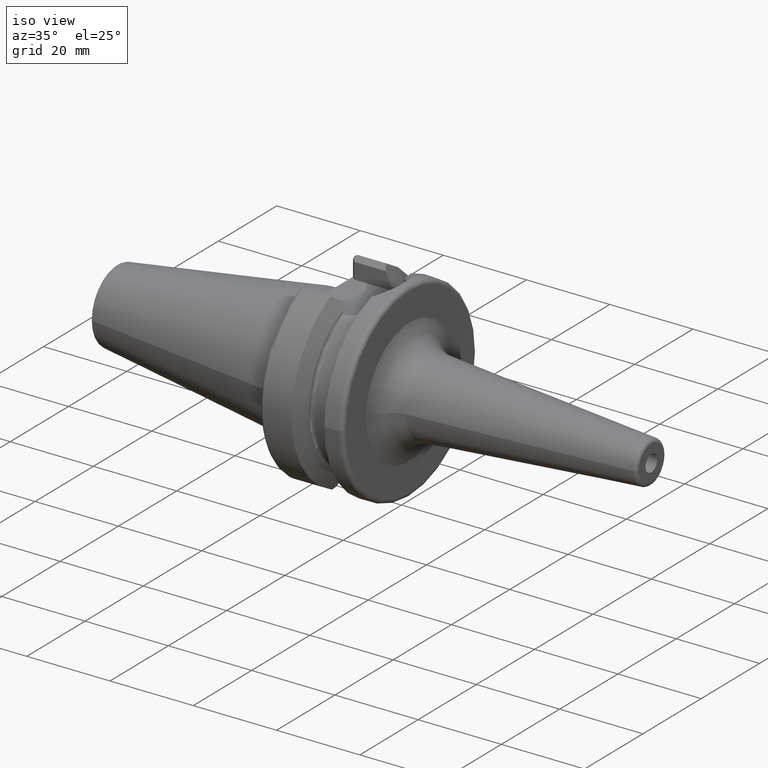
[diagram: clean part render]
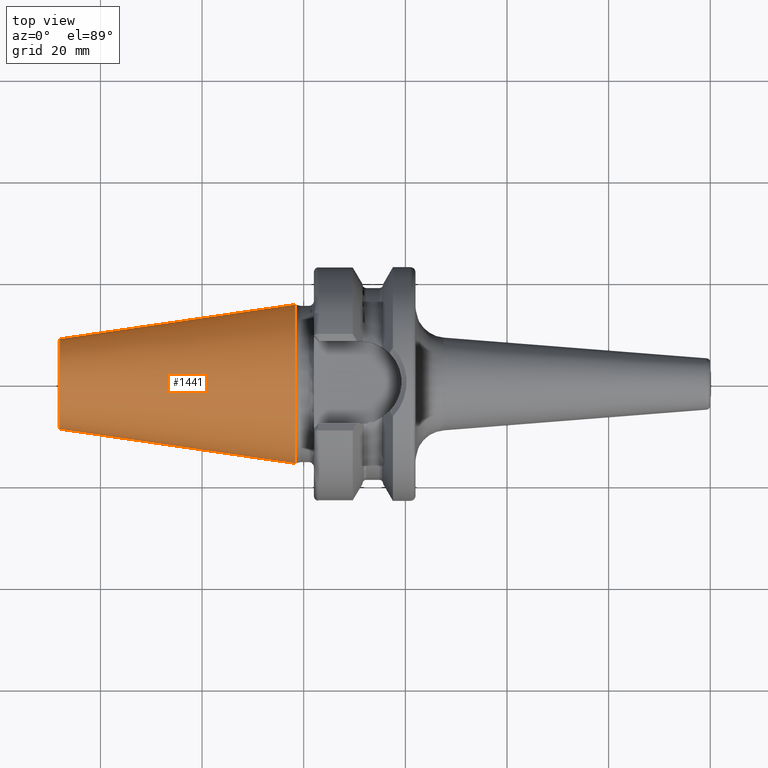
[diagram: tour spotlight — one face highlighted and labeled with its STEP entity id]
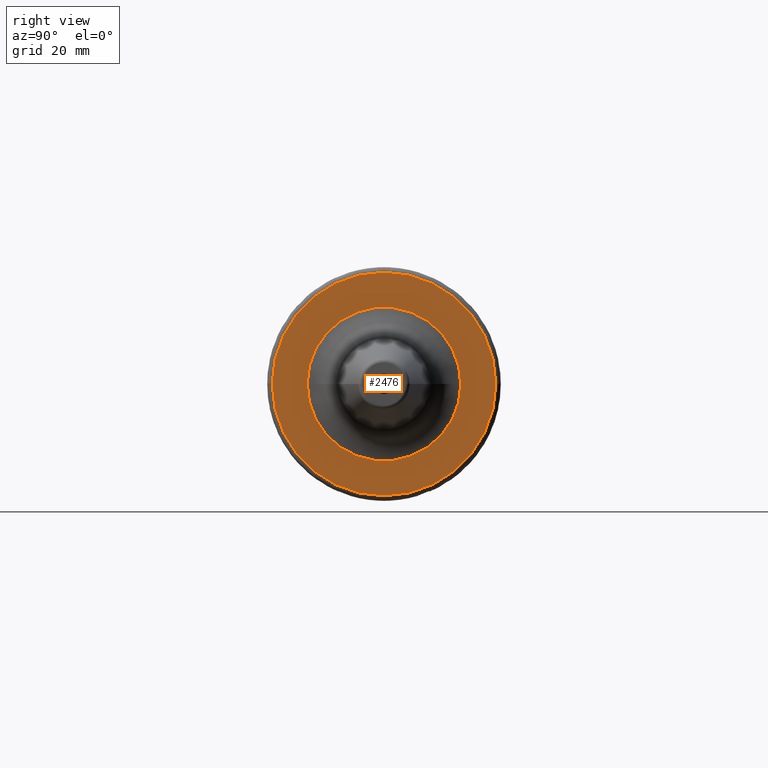
[diagram: tour spotlight — one face highlighted and labeled with its STEP entity id]
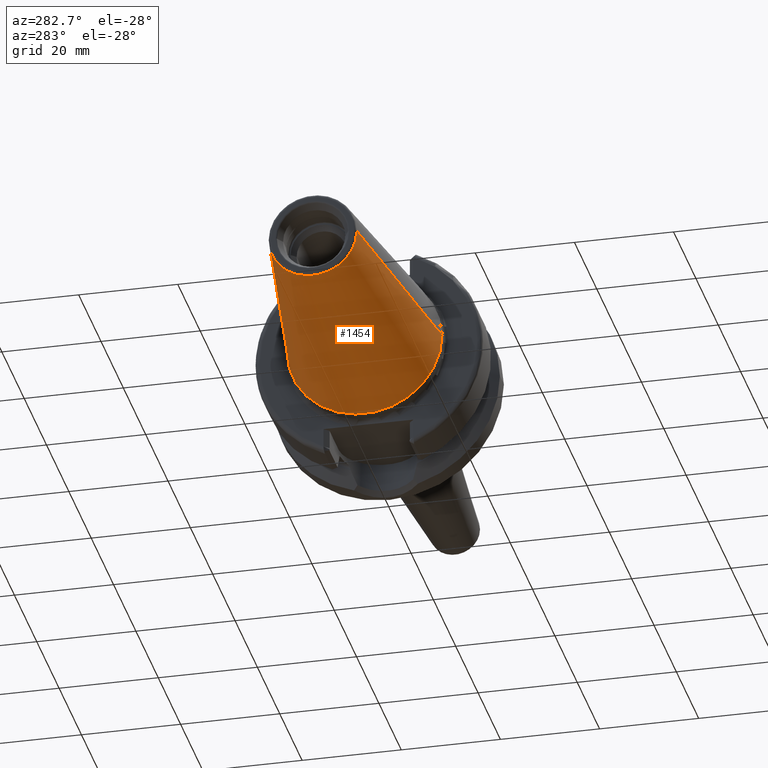
[diagram: tour spotlight — one face highlighted and labeled with its STEP entity id]
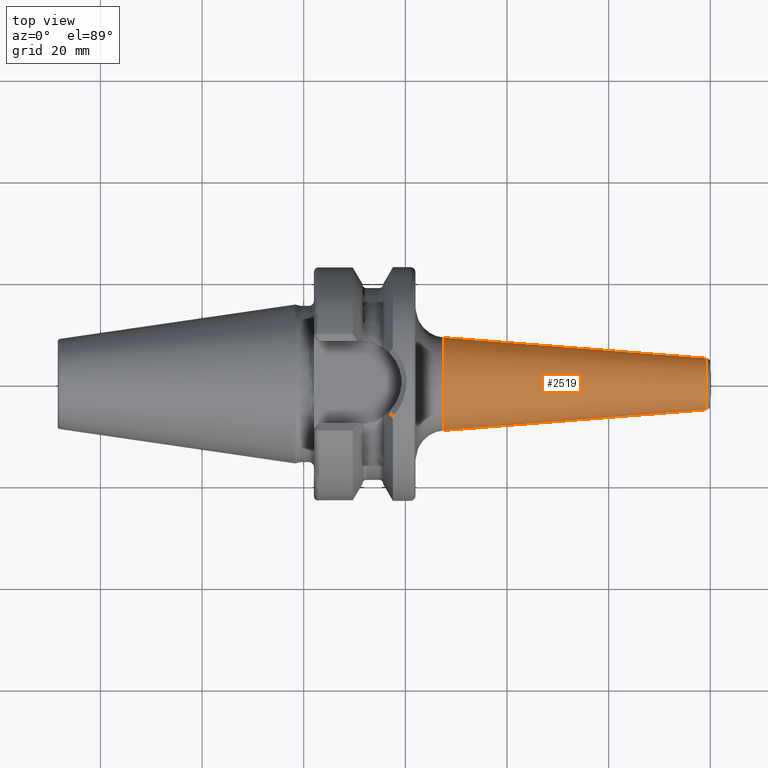
[diagram: tour spotlight — one face highlighted and labeled with its STEP entity id]
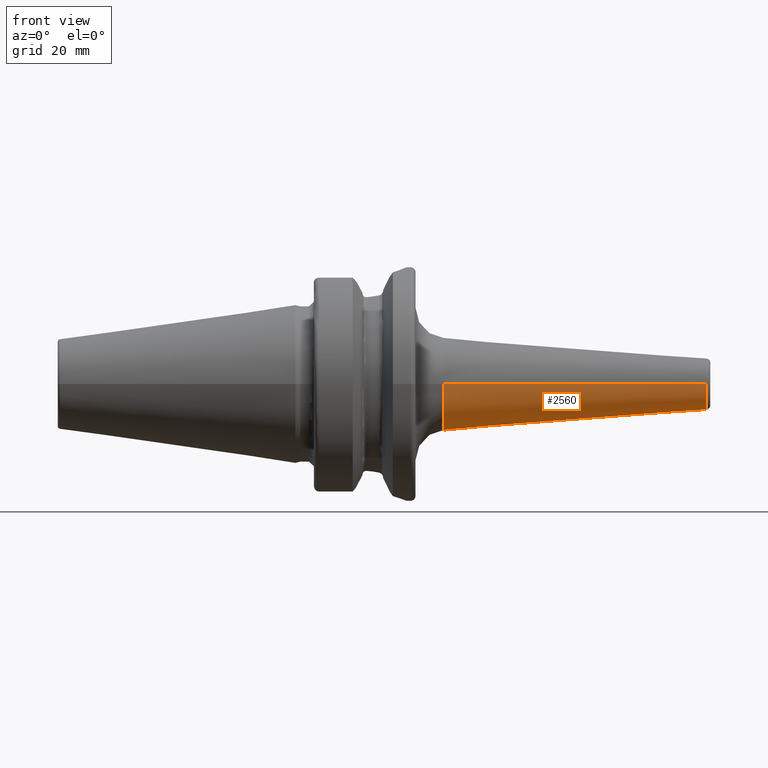
[diagram: tour spotlight — one face highlighted and labeled with its STEP entity id]
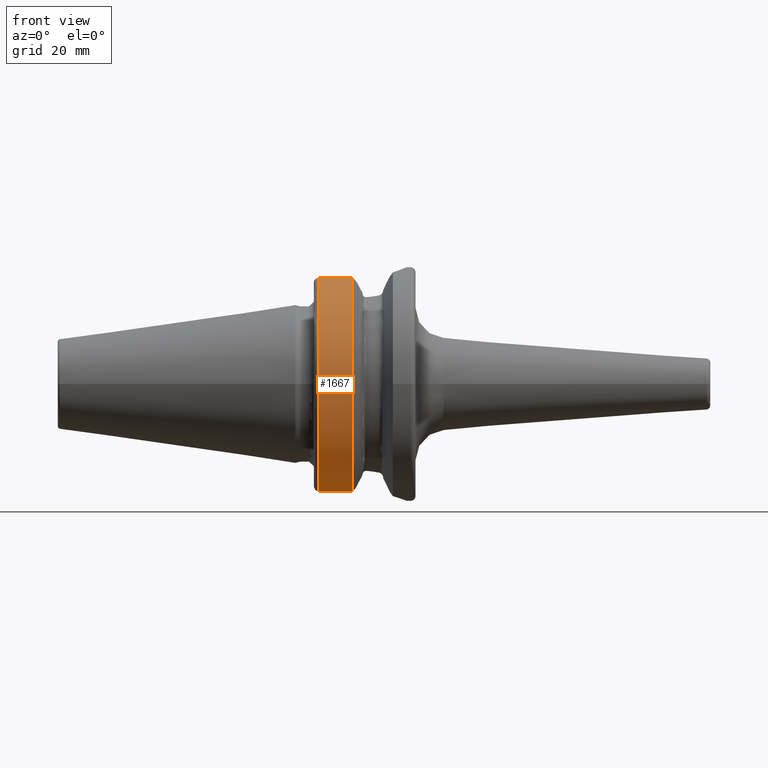
[diagram: tour spotlight — one face highlighted and labeled with its STEP entity id]
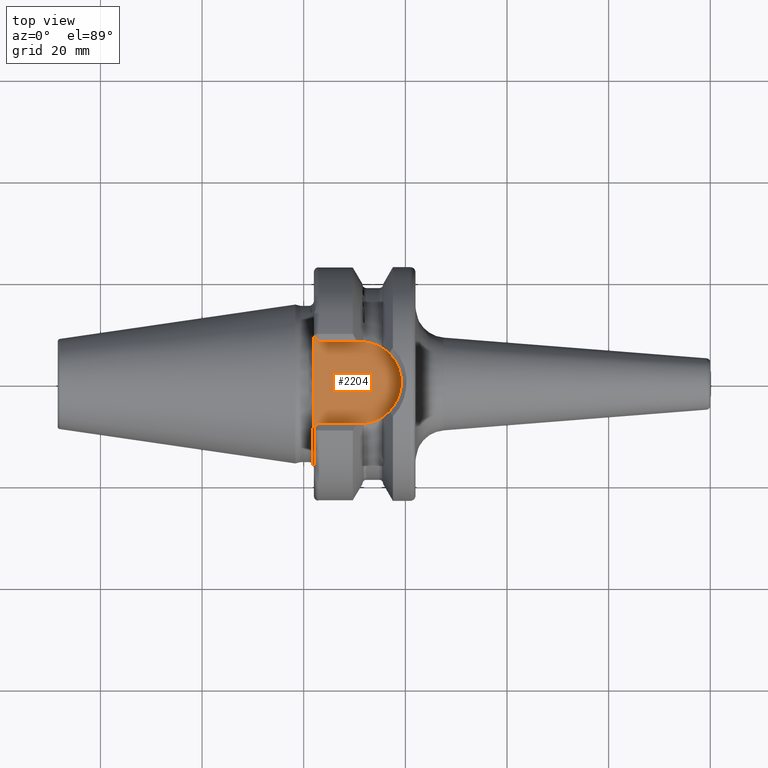
[diagram: tour spotlight — one face highlighted and labeled with its STEP entity id]
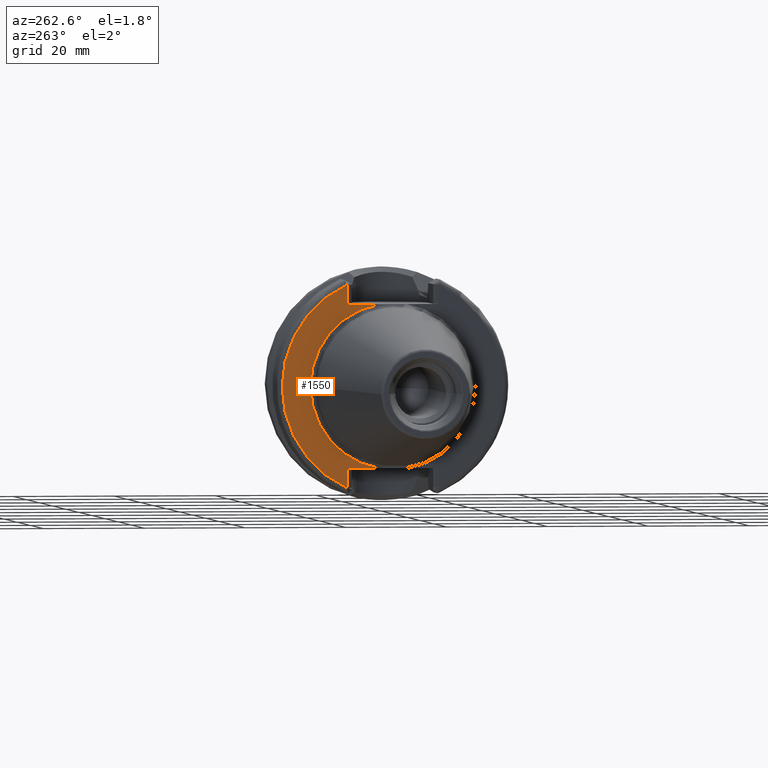
[diagram: tour spotlight — one face highlighted and labeled with its STEP entity id]
A machine part: a face-by-face anatomy tour. The part has 94 B-rep faces; the first image is the clean iso view, then the 8 largest visible faces are spotlighted one at a time (largest first), each with its STEP entity span.

Face 1 — top view, entity #1441. In plain terms, the highlighted conical surface has half-angle 8.298 deg.
Definition (entity closure, byte-faithful):
#37=CARTESIAN_POINT('',(-4.797215933459E1,0.E0,0.E0));
#38=DIRECTION('',(1.E0,0.E0,0.E0));
#39=DIRECTION('',(0.E0,1.E0,0.E0));
#40=AXIS2_PLACEMENT_3D('',#37,#38,#39);
#42=CARTESIAN_POINT('',(-1.629230650827E0,0.E0,0.E0));
#43=DIRECTION('',(1.E0,0.E0,0.E0));
#44=DIRECTION('',(0.E0,1.E0,0.E0));
#45=AXIS2_PLACEMENT_3D('',#42,#43,#44);
#47=DIRECTION('',(-9.895312636440E-1,-1.443186691705E-1,0.E0));
#48=VECTOR('',#47,4.683321324594E1);
#49=CARTESIAN_POINT('',(-1.629230650827E0,1.563738406209E1,0.E0));
#50=LINE('',#49,#48);
#51=DIRECTION('',(-9.895312636440E-1,1.443186691705E-1,0.E0));
#52=VECTOR('',#51,4.683321324594E1);
#53=CARTESIAN_POINT('',(-1.629230650827E0,-1.563738406209E1,0.E0));
#54=LINE('',#53,#52);
#1138=CARTESIAN_POINT('',(-4.797215933459E1,8.878477053461E0,0.E0));
#1140=VERTEX_POINT('',#1138);
#1142=CARTESIAN_POINT('',(-4.797215933459E1,-8.878477053461E0,0.E0));
#1144=VERTEX_POINT('',#1142);
#1353=CARTESIAN_POINT('',(-1.629230650827E0,1.563738406209E1,0.E0));
#1354=VERTEX_POINT('',#1353);
#1355=CARTESIAN_POINT('',(-1.629230650827E0,-1.563738406209E1,0.E0));
#1356=VERTEX_POINT('',#1355);
#1427=CARTESIAN_POINT('',(-2.480069499271E1,0.E0,0.E0));
#1428=DIRECTION('',(1.E0,0.E0,0.E0));
#1429=DIRECTION('',(0.E0,-1.E0,0.E0));
#1430=AXIS2_PLACEMENT_3D('',#1427,#1428,#1429);
#1431=CONICAL_SURFACE('',#1430,1.225793055778E1,8.297826828206E0);
#1433=ORIENTED_EDGE('',*,*,#1432,.F.);
#1435=ORIENTED_EDGE('',*,*,#1434,.T.);
#1437=ORIENTED_EDGE('',*,*,#1436,.T.);
#1438=ORIENTED_EDGE('',*,*,#1420,.F.);
#1439=EDGE_LOOP('',(#1433,#1435,#1437,#1438));
#1440=FACE_OUTER_BOUND('',#1439,.F.);
#1441=ADVANCED_FACE('',(#1440),#1431,.T.);
#41=CIRCLE('',#40,8.878477053461E0);
#46=CIRCLE('',#45,1.563738406209E1);
#1420=EDGE_CURVE('',#1140,#1144,#41,.T.);
#1432=EDGE_CURVE('',#1354,#1140,#50,.T.);
#1434=EDGE_CURVE('',#1354,#1356,#46,.T.);
#1436=EDGE_CURVE('',#1356,#1144,#54,.T.);

Face 2 — right view, entity #2476. In plain terms, the highlighted planar face has unit normal (1, 0, 0).
Definition (entity closure, byte-faithful):
#802=CARTESIAN_POINT('',(2.2E1,0.E0,0.E0));
#803=DIRECTION('',(1.E0,0.E0,0.E0));
#804=DIRECTION('',(0.E0,1.E0,0.E0));
#805=AXIS2_PLACEMENT_3D('',#802,#803,#804);
#817=CARTESIAN_POINT('',(2.2E1,0.E0,0.E0));
#818=DIRECTION('',(-1.E0,0.E0,0.E0));
#819=DIRECTION('',(0.E0,1.E0,0.E0));
#820=AXIS2_PLACEMENT_3D('',#817,#818,#819);
#822=CARTESIAN_POINT('',(2.2E1,0.E0,0.E0));
#823=DIRECTION('',(1.E0,0.E0,0.E0));
#824=DIRECTION('',(0.E0,-1.E0,0.E0));
#825=AXIS2_PLACEMENT_3D('',#822,#823,#824);
#827=CARTESIAN_POINT('',(2.2E1,0.E0,0.E0));
#828=DIRECTION('',(1.E0,0.E0,0.E0));
#829=DIRECTION('',(0.E0,1.E0,0.E0));
#830=AXIS2_PLACEMENT_3D('',#827,#828,#829);
#1272=CARTESIAN_POINT('',(2.2E1,2.199E1,0.E0));
#1273=VERTEX_POINT('',#1272);
#1274=CARTESIAN_POINT('',(2.2E1,-2.199E1,0.E0));
#1275=VERTEX_POINT('',#1274);
#1373=CARTESIAN_POINT('',(2.2E1,-1.511104194578E1,0.E0));
#1374=CARTESIAN_POINT('',(2.2E1,1.511104194578E1,0.E0));
#1375=VERTEX_POINT('',#1373);
#1376=VERTEX_POINT('',#1374);
#2461=CARTESIAN_POINT('',(2.2E1,0.E0,0.E0));
#2462=DIRECTION('',(1.E0,0.E0,0.E0));
#2463=DIRECTION('',(0.E0,-1.E0,0.E0));
#2464=AXIS2_PLACEMENT_3D('',#2461,#2462,#2463);
#2465=PLANE('',#2464);
#2466=ORIENTED_EDGE('',*,*,#2456,.T.);
#2467=ORIENTED_EDGE('',*,*,#2440,.F.);
#2468=EDGE_LOOP('',(#2466,#2467));
#2469=FACE_OUTER_BOUND('',#2468,.F.);
#2471=ORIENTED_EDGE('',*,*,#2470,.T.);
#2473=ORIENTED_EDGE('',*,*,#2472,.T.);
#2474=EDGE_LOOP('',(#2471,#2473));
#2475=FACE_BOUND('',#2474,.F.);
#2476=ADVANCED_FACE('',(#2469,#2475),#2465,.T.);
#806=CIRCLE('',#805,2.199E1);
#821=CIRCLE('',#820,2.199E1);
#826=CIRCLE('',#825,1.511104194578E1);
#831=CIRCLE('',#830,1.511104194578E1);
#2440=EDGE_CURVE('',#1273,#1275,#806,.T.);
#2456=EDGE_CURVE('',#1273,#1275,#821,.T.);
#2470=EDGE_CURVE('',#1375,#1376,#826,.T.);
#2472=EDGE_CURVE('',#1376,#1375,#831,.T.);

Face 3 — auxiliary view, entity #1454. In plain terms, the highlighted conical surface has half-angle 8.298 deg.
Definition (entity closure, byte-faithful):
#32=CARTESIAN_POINT('',(-4.797215933459E1,0.E0,0.E0));
#33=DIRECTION('',(-1.E0,0.E0,0.E0));
#34=DIRECTION('',(0.E0,1.E0,0.E0));
#35=AXIS2_PLACEMENT_3D('',#32,#33,#34);
#47=DIRECTION('',(-9.895312636440E-1,-1.443186691705E-1,0.E0));
#48=VECTOR('',#47,4.683321324594E1);
#49=CARTESIAN_POINT('',(-1.629230650827E0,1.563738406209E1,0.E0));
#50=LINE('',#49,#48);
#51=DIRECTION('',(-9.895312636440E-1,1.443186691705E-1,0.E0));
#52=VECTOR('',#51,4.683321324594E1);
#53=CARTESIAN_POINT('',(-1.629230650827E0,-1.563738406209E1,0.E0));
#54=LINE('',#53,#52);
#55=CARTESIAN_POINT('',(-1.629230650827E0,0.E0,0.E0));
#56=DIRECTION('',(-1.E0,0.E0,0.E0));
#57=DIRECTION('',(0.E0,1.E0,0.E0));
#58=AXIS2_PLACEMENT_3D('',#55,#56,#57);
#1138=CARTESIAN_POINT('',(-4.797215933459E1,8.878477053461E0,0.E0));
#1140=VERTEX_POINT('',#1138);
#1142=CARTESIAN_POINT('',(-4.797215933459E1,-8.878477053461E0,0.E0));
#1144=VERTEX_POINT('',#1142);
#1353=CARTESIAN_POINT('',(-1.629230650827E0,1.563738406209E1,0.E0));
#1354=VERTEX_POINT('',#1353);
#1355=CARTESIAN_POINT('',(-1.629230650827E0,-1.563738406209E1,0.E0));
#1356=VERTEX_POINT('',#1355);
#1442=CARTESIAN_POINT('',(-2.480069499271E1,0.E0,0.E0));
#1443=DIRECTION('',(1.E0,0.E0,0.E0));
#1444=DIRECTION('',(0.E0,-1.E0,0.E0));
#1445=AXIS2_PLACEMENT_3D('',#1442,#1443,#1444);
#1446=CONICAL_SURFACE('',#1445,1.225793055778E1,8.297826828206E0);
#1447=ORIENTED_EDGE('',*,*,#1432,.T.);
#1448=ORIENTED_EDGE('',*,*,#1409,.T.);
#1449=ORIENTED_EDGE('',*,*,#1436,.F.);
#1451=ORIENTED_EDGE('',*,*,#1450,.F.);
#1452=EDGE_LOOP('',(#1447,#1448,#1449,#1451));
#1453=FACE_OUTER_BOUND('',#1452,.F.);
#1454=ADVANCED_FACE('',(#1453),#1446,.T.);
#36=CIRCLE('',#35,8.878477053461E0);
#59=CIRCLE('',#58,1.563738406209E1);
#1409=EDGE_CURVE('',#1140,#1144,#36,.T.);
#1432=EDGE_CURVE('',#1354,#1140,#50,.T.);
#1436=EDGE_CURVE('',#1356,#1144,#54,.T.);
#1450=EDGE_CURVE('',#1354,#1356,#59,.T.);

Face 4 — top view, entity #2519. In plain terms, the highlighted conical surface has half-angle 4.5 deg.
Definition (entity closure, byte-faithful):
#842=CARTESIAN_POINT('',(7.926276727658E1,0.E0,0.E0));
#843=DIRECTION('',(-1.E0,0.E0,0.E0));
#844=DIRECTION('',(0.E0,-1.E0,0.E0));
#845=AXIS2_PLACEMENT_3D('',#842,#843,#844);
#847=CARTESIAN_POINT('',(2.752924542563E1,0.E0,0.E0));
#848=DIRECTION('',(1.E0,0.E0,0.E0));
#849=DIRECTION('',(0.E0,1.E0,0.E0));
#850=AXIS2_PLACEMENT_3D('',#847,#848,#849);
#867=DIRECTION('',(-9.969173337331E-1,7.845909572785E-2,7.870237940416E-13));
#868=VECTOR('',#867,5.189349216873E1);
#869=CARTESIAN_POINT('',(7.926276727659E1,5.058021473660E0,
-3.276499464409E-11));
#870=LINE('',#869,#868);
#876=DIRECTION('',(-9.969173337331E-1,-7.845909572785E-2,-7.869871306644E-13));
#877=VECTOR('',#876,5.189349216873E1);
#878=CARTESIAN_POINT('',(7.926276727659E1,-5.058021473660E0,
3.276483176005E-11));
#879=LINE('',#878,#877);
#1365=CARTESIAN_POINT('',(7.926276727658E1,5.058021473660E0,0.E0));
#1366=CARTESIAN_POINT('',(7.926276727658E1,-5.058021473660E0,0.E0));
#1367=VERTEX_POINT('',#1365);
#1368=VERTEX_POINT('',#1366);
#1377=CARTESIAN_POINT('',(2.752924542563E1,-9.129537943378E0,0.E0));
#1378=CARTESIAN_POINT('',(2.752924542563E1,9.129537943378E0,0.E0));
#1379=VERTEX_POINT('',#1377);
#1380=VERTEX_POINT('',#1378);
#2505=CARTESIAN_POINT('',(5.339600635111E1,0.E0,0.E0));
#2506=DIRECTION('',(-1.E0,0.E0,0.E0));
#2507=DIRECTION('',(0.E0,1.E0,0.E0));
#2508=AXIS2_PLACEMENT_3D('',#2505,#2506,#2507);
#2509=CONICAL_SURFACE('',#2508,7.093779708519E0,4.5E0);
#2511=ORIENTED_EDGE('',*,*,#2510,.F.);
#2513=ORIENTED_EDGE('',*,*,#2512,.T.);
#2514=ORIENTED_EDGE('',*,*,#2499,.F.);
#2516=ORIENTED_EDGE('',*,*,#2515,.F.);
#2517=EDGE_LOOP('',(#2511,#2513,#2514,#2516));
#2518=FACE_OUTER_BOUND('',#2517,.F.);
#2519=ADVANCED_FACE('',(#2518),#2509,.T.);
#846=CIRCLE('',#845,5.058021473660E0);
#851=CIRCLE('',#850,9.129537943378E0);
#2499=EDGE_CURVE('',#1380,#1379,#851,.T.);
#2510=EDGE_CURVE('',#1368,#1367,#846,.T.);
#2512=EDGE_CURVE('',#1368,#1379,#879,.T.);
#2515=EDGE_CURVE('',#1367,#1380,#870,.T.);

Face 5 — front view, entity #2560. In plain terms, the highlighted conical surface has half-angle 4.5 deg.
Definition (entity closure, byte-faithful):
#862=CARTESIAN_POINT('',(7.926276727658E1,0.E0,0.E0));
#863=DIRECTION('',(-1.E0,0.E0,0.E0));
#864=DIRECTION('',(0.E0,1.E0,0.E0));
#865=AXIS2_PLACEMENT_3D('',#862,#863,#864);
#867=DIRECTION('',(-9.969173337331E-1,7.845909572785E-2,7.870237940416E-13));
#868=VECTOR('',#867,5.189349216873E1);
#869=CARTESIAN_POINT('',(7.926276727659E1,5.058021473660E0,
-3.276499464409E-11));
#870=LINE('',#869,#868);
#871=CARTESIAN_POINT('',(2.752924542563E1,0.E0,0.E0));
#872=DIRECTION('',(1.E0,0.E0,0.E0));
#873=DIRECTION('',(0.E0,-1.E0,0.E0));
#874=AXIS2_PLACEMENT_3D('',#871,#872,#873);
#876=DIRECTION('',(-9.969173337331E-1,-7.845909572785E-2,-7.869871306644E-13));
#877=VECTOR('',#876,5.189349216873E1);
#878=CARTESIAN_POINT('',(7.926276727659E1,-5.058021473660E0,
3.276483176005E-11));
#879=LINE('',#878,#877);
#1365=CARTESIAN_POINT('',(7.926276727658E1,5.058021473660E0,0.E0));
#1366=CARTESIAN_POINT('',(7.926276727658E1,-5.058021473660E0,0.E0));
#1367=VERTEX_POINT('',#1365);
#1368=VERTEX_POINT('',#1366);
#1377=CARTESIAN_POINT('',(2.752924542563E1,-9.129537943378E0,0.E0));
#1378=CARTESIAN_POINT('',(2.752924542563E1,9.129537943378E0,0.E0));
#1379=VERTEX_POINT('',#1377);
#1380=VERTEX_POINT('',#1378);
#2549=CARTESIAN_POINT('',(5.339600635111E1,0.E0,0.E0));
#2550=DIRECTION('',(-1.E0,0.E0,0.E0));
#2551=DIRECTION('',(0.E0,1.E0,0.E0));
#2552=AXIS2_PLACEMENT_3D('',#2549,#2550,#2551);
#2553=CONICAL_SURFACE('',#2552,7.093779708519E0,4.5E0);
#2554=ORIENTED_EDGE('',*,*,#2540,.F.);
#2555=ORIENTED_EDGE('',*,*,#2515,.T.);
#2556=ORIENTED_EDGE('',*,*,#2485,.F.);
#2557=ORIENTED_EDGE('',*,*,#2512,.F.);
#2558=EDGE_LOOP('',(#2554,#2555,#2556,#2557));
#2559=FACE_OUTER_BOUND('',#2558,.F.);
#2560=ADVANCED_FACE('',(#2559),#2553,.T.);
#866=CIRCLE('',#865,5.058021473660E0);
#875=CIRCLE('',#874,9.129537943378E0);
#2485=EDGE_CURVE('',#1379,#1380,#875,.T.);
#2512=EDGE_CURVE('',#1368,#1379,#879,.T.);
#2515=EDGE_CURVE('',#1367,#1380,#870,.T.);
#2540=EDGE_CURVE('',#1367,#1368,#866,.T.);

Face 6 — front view, entity #1667. In plain terms, the highlighted cylindrical surface (partial cylindrical patch) has radius 22.99 mm, axis along (1, 0, 0).
Definition (entity closure, byte-faithful):
#190=CARTESIAN_POINT('',(9.650924158743E0,0.E0,0.E0));
#191=DIRECTION('',(1.E0,0.E0,0.E0));
#192=DIRECTION('',(0.E0,-4.135970895862E-1,9.104600197075E-1));
#193=AXIS2_PLACEMENT_3D('',#190,#191,#192);
#195=DIRECTION('',(9.999999999953E-1,1.691137854943E-6,-2.559578267209E-6));
#196=VECTOR('',#195,6.650924186073E0);
#197=CARTESIAN_POINT('',(2.999999972701E0,-9.014923952472E0,-2.114877606078E1));
#198=LINE('',#197,#196);
#199=CARTESIAN_POINT('',(3.E0,0.E0,0.E0));
#200=DIRECTION('',(-1.E0,0.E0,0.E0));
#201=DIRECTION('',(0.E0,-3.921232146517E-1,-9.199127048428E-1));
#202=AXIS2_PLACEMENT_3D('',#199,#200,#201);
#204=DIRECTION('',(-9.999999999877E-1,2.689360368840E-6,4.174830096868E-6));
#205=VECTOR('',#204,6.650924175867E0);
#206=CARTESIAN_POINT('',(9.650924158743E0,-9.508597089586E0,2.093147585308E1));
#207=LINE('',#206,#205);
#612=CARTESIAN_POINT('',(2.999999972701E0,-9.014923952472E0,-2.114877606078E1));
#1304=CARTESIAN_POINT('',(9.650924158743E0,-9.508597089586E0,2.093147585308E1));
#1305=CARTESIAN_POINT('',(9.650924158743E0,-9.014912704843E0,
-2.114879308434E1));
#1306=VERTEX_POINT('',#1304);
#1307=VERTEX_POINT('',#1305);
#1320=CARTESIAN_POINT('',(3.E0,-9.508621994147E0,2.093146453960E1));
#1321=VERTEX_POINT('',#1320);
#1342=VERTEX_POINT('',#612);
#1653=CARTESIAN_POINT('',(-5.192E1,0.E0,0.E0));
#1654=DIRECTION('',(1.E0,0.E0,0.E0));
#1655=DIRECTION('',(0.E0,-1.E0,0.E0));
#1656=AXIS2_PLACEMENT_3D('',#1653,#1654,#1655);
#1657=CYLINDRICAL_SURFACE('',#1656,2.299E1);
#1658=ORIENTED_EDGE('',*,*,#1642,.T.);
#1660=ORIENTED_EDGE('',*,*,#1659,.F.);
#1662=ORIENTED_EDGE('',*,*,#1661,.T.);
#1664=ORIENTED_EDGE('',*,*,#1663,.F.);
#1665=EDGE_LOOP('',(#1658,#1660,#1662,#1664));
#1666=FACE_OUTER_BOUND('',#1665,.F.);
#1667=ADVANCED_FACE('',(#1666),#1657,.T.);
#194=CIRCLE('',#193,2.299E1);
#203=CIRCLE('',#202,2.299E1);
#1642=EDGE_CURVE('',#1306,#1307,#194,.T.);
#1659=EDGE_CURVE('',#1342,#1307,#198,.T.);
#1661=EDGE_CURVE('',#1342,#1321,#203,.T.);
#1663=EDGE_CURVE('',#1306,#1321,#207,.T.);

Face 7 — top view, entity #2204. In plain terms, the highlighted planar face has unit normal (0, 0, 1).
Definition (entity closure, byte-faithful):
#666=DIRECTION('',(1.E0,0.E0,0.E0));
#667=VECTOR('',#666,8.155E0);
#668=CARTESIAN_POINT('',(3.E0,-8.095E0,1.615E1));
#669=LINE('',#668,#667);
#670=DIRECTION('',(0.E0,1.E0,0.E0));
#671=VECTOR('',#670,6.389796680469E0);
#672=CARTESIAN_POINT('',(2.E0,-9.095E0,1.615E1));
#673=LINE('',#672,#671);
#674=DIRECTION('',(0.E0,1.E0,0.E0));
#675=VECTOR('',#674,6.389796680469E0);
#676=CARTESIAN_POINT('',(2.E0,2.705203319531E0,1.615E1));
#677=LINE('',#676,#675);
#678=DIRECTION('',(-1.E0,0.E0,0.E0));
#679=VECTOR('',#678,8.155E0);
#680=CARTESIAN_POINT('',(1.1155E1,8.095E0,1.615E1));
#681=LINE('',#680,#679);
#682=CARTESIAN_POINT('',(1.1155E1,0.E0,1.615E1));
#683=DIRECTION('',(0.E0,0.E0,1.E0));
#684=DIRECTION('',(0.E0,-1.E0,0.E0));
#685=AXIS2_PLACEMENT_3D('',#682,#683,#684);
#691=DIRECTION('',(7.071067811865E-1,7.071067811865E-1,0.E0));
#692=VECTOR('',#691,1.414213562373E0);
#693=CARTESIAN_POINT('',(2.E0,-9.095E0,1.615E1));
#694=LINE('',#693,#692);
#700=CARTESIAN_POINT('',(2.E0,-2.705203319531E0,1.615E1));
#701=CARTESIAN_POINT('',(2.E0,-2.447526606637E0,1.615E1));
#702=CARTESIAN_POINT('',(1.994666808080E0,-1.932209003238E0,1.615E1));
#703=CARTESIAN_POINT('',(1.982373677751E0,-1.159353659083E0,1.615E1));
#704=CARTESIAN_POINT('',(1.974023153496E0,-3.864772813160E-1,1.615E1));
#705=CARTESIAN_POINT('',(1.974022947076E0,3.864455623798E-1,1.615E1));
#706=CARTESIAN_POINT('',(1.982373315251E0,1.159330607264E0,1.615E1));
#707=CARTESIAN_POINT('',(1.994666672292E0,1.932198796230E0,1.615E1));
#708=CARTESIAN_POINT('',(2.E0,2.447523240700E0,1.615E1));
#709=CARTESIAN_POINT('',(2.E0,2.705203319531E0,1.615E1));
#716=DIRECTION('',(-7.071067811865E-1,7.071067811865E-1,0.E0));
#717=VECTOR('',#716,1.414213562373E0);
#718=CARTESIAN_POINT('',(3.E0,8.095E0,1.615E1));
#719=LINE('',#718,#717);
#1276=CARTESIAN_POINT('',(1.1155E1,-8.095E0,1.615E1));
#1277=CARTESIAN_POINT('',(1.1155E1,8.095E0,1.615E1));
#1278=VERTEX_POINT('',#1276);
#1279=VERTEX_POINT('',#1277);
#1280=CARTESIAN_POINT('',(2.E0,2.705203319531E0,1.615E1));
#1281=VERTEX_POINT('',#1280);
#1282=CARTESIAN_POINT('',(2.E0,-2.705203319531E0,1.615E1));
#1283=VERTEX_POINT('',#1282);
#1313=CARTESIAN_POINT('',(3.E0,-8.095E0,1.615E1));
#1315=VERTEX_POINT('',#1313);
#1317=CARTESIAN_POINT('',(2.E0,-9.095E0,1.615E1));
#1319=VERTEX_POINT('',#1317);
#1326=CARTESIAN_POINT('',(2.E0,9.095E0,1.615E1));
#1327=VERTEX_POINT('',#1326);
#1328=CARTESIAN_POINT('',(3.E0,8.095E0,1.615E1));
#1330=VERTEX_POINT('',#1328);
#2186=CARTESIAN_POINT('',(0.E0,0.E0,1.615E1));
#2187=DIRECTION('',(0.E0,0.E0,1.E0));
#2188=DIRECTION('',(1.E0,0.E0,0.E0));
#2189=AXIS2_PLACEMENT_3D('',#2186,#2187,#2188);
#2190=PLANE('',#2189);
#2191=ORIENTED_EDGE('',*,*,#1957,.F.);
#2193=ORIENTED_EDGE('',*,*,#2192,.F.);
#2194=ORIENTED_EDGE('',*,*,#1563,.T.);
#2196=ORIENTED_EDGE('',*,*,#2195,.T.);
#2197=ORIENTED_EDGE('',*,*,#1541,.T.);
#2199=ORIENTED_EDGE('',*,*,#2198,.F.);
#2200=ORIENTED_EDGE('',*,*,#2178,.F.);
#2201=ORIENTED_EDGE('',*,*,#1926,.F.);
#2202=EDGE_LOOP('',(#2191,#2193,#2194,#2196,#2197,#2199,#2200,#2201));
#2203=FACE_OUTER_BOUND('',#2202,.F.);
#2204=ADVANCED_FACE('',(#2203),#2190,.T.);
#686=CIRCLE('',#685,8.095E0);
#710=B_SPLINE_CURVE_WITH_KNOTS('',3,(#700,#701,#702,#703,#704,#705,#706,#707,
#708,#709),.UNSPECIFIED.,.F.,.F.,(4,1,1,1,1,1,1,4),(0.E0,1.428571428571E-1,
2.857142857143E-1,4.285714285714E-1,5.714285714286E-1,7.142857142857E-1,
8.571428571429E-1,1.E0),.UNSPECIFIED.);
#1541=EDGE_CURVE('',#1281,#1327,#677,.T.);
#1563=EDGE_CURVE('',#1319,#1283,#673,.T.);
#1926=EDGE_CURVE('',#1278,#1279,#686,.T.);
#1957=EDGE_CURVE('',#1315,#1278,#669,.T.);
#2178=EDGE_CURVE('',#1279,#1330,#681,.T.);
#2192=EDGE_CURVE('',#1319,#1315,#694,.T.);
#2195=EDGE_CURVE('',#1283,#1281,#710,.T.);
#2198=EDGE_CURVE('',#1330,#1327,#719,.T.);

Face 8 — auxiliary view, entity #1550. In plain terms, the highlighted planar face has unit normal (1, 0, 0).
Definition (entity closure, byte-faithful):
#96=CARTESIAN_POINT('',(2.E0,0.E0,0.E0));
#97=DIRECTION('',(-1.E0,0.E0,0.E0));
#98=DIRECTION('',(0.E0,1.E0,0.E0));
#99=AXIS2_PLACEMENT_3D('',#96,#97,#98);
#127=DIRECTION('',(4.744939476517E-6,4.745345851296E-6,9.999999999775E-1));
#128=VECTOR('',#127,3.871014232028E0);
#129=CARTESIAN_POINT('',(1.999981632272E0,9.094981630699E0,-2.002101423194E1));
#130=LINE('',#129,#128);
#131=DIRECTION('',(-7.287242154960E-6,-7.289057609279E-6,9.999999999469E-1));
#132=VECTOR('',#131,3.871026254550E0);
#133=CARTESIAN_POINT('',(2.E0,9.095E0,1.615E1));
#134=LINE('',#133,#132);
#598=CARTESIAN_POINT('',(2.E0,0.E0,0.E0));
#599=DIRECTION('',(-1.E0,0.E0,0.E0));
#600=DIRECTION('',(0.E0,4.135972556779E-1,9.104599442566E-1));
#601=AXIS2_PLACEMENT_3D('',#598,#599,#600);
#674=DIRECTION('',(0.E0,1.E0,0.E0));
#675=VECTOR('',#674,6.389796680469E0);
#676=CARTESIAN_POINT('',(2.E0,2.705203319531E0,1.615E1));
#677=LINE('',#676,#675);
#695=CARTESIAN_POINT('',(2.E0,0.E0,0.E0));
#696=DIRECTION('',(1.E0,0.E0,0.E0));
#697=DIRECTION('',(0.E0,1.E0,0.E0));
#698=AXIS2_PLACEMENT_3D('',#695,#696,#697);
#732=DIRECTION('',(0.E0,-1.E0,0.E0));
#733=VECTOR('',#732,6.389796680469E0);
#734=CARTESIAN_POINT('',(2.E0,9.095E0,-1.615E1));
#735=LINE('',#734,#733);
#1210=CARTESIAN_POINT('',(2.E0,1.6375E1,0.E0));
#1212=VERTEX_POINT('',#1210);
#1280=CARTESIAN_POINT('',(2.E0,2.705203319531E0,1.615E1));
#1281=VERTEX_POINT('',#1280);
#1288=CARTESIAN_POINT('',(2.E0,2.705203319531E0,-1.615E1));
#1289=VERTEX_POINT('',#1288);
#1322=CARTESIAN_POINT('',(2.E0,9.095023821277E0,2.002100501198E1));
#1324=VERTEX_POINT('',#1322);
#1326=CARTESIAN_POINT('',(2.E0,9.095E0,1.615E1));
#1327=VERTEX_POINT('',#1326);
#1336=CARTESIAN_POINT('',(1.999981632272E0,9.094981630699E0,-2.002101423194E1));
#1337=CARTESIAN_POINT('',(2.E0,9.095E0,-1.615E1));
#1338=VERTEX_POINT('',#1336);
#1339=VERTEX_POINT('',#1337);
#1530=CARTESIAN_POINT('',(2.E0,0.E0,0.E0));
#1531=DIRECTION('',(1.E0,0.E0,0.E0));
#1532=DIRECTION('',(0.E0,-1.E0,0.E0));
#1533=AXIS2_PLACEMENT_3D('',#1530,#1531,#1532);
#1534=PLANE('',#1533);
#1536=ORIENTED_EDGE('',*,*,#1535,.F.);
#1538=ORIENTED_EDGE('',*,*,#1537,.F.);
#1540=ORIENTED_EDGE('',*,*,#1539,.F.);
#1542=ORIENTED_EDGE('',*,*,#1541,.F.);
#1544=ORIENTED_EDGE('',*,*,#1543,.F.);
#1545=ORIENTED_EDGE('',*,*,#1516,.T.);
#1547=ORIENTED_EDGE('',*,*,#1546,.F.);
#1548=EDGE_LOOP('',(#1536,#1538,#1540,#1542,#1544,#1545,#1547));
#1549=FACE_OUTER_BOUND('',#1548,.F.);
#1550=ADVANCED_FACE('',(#1549),#1534,.F.);
#100=CIRCLE('',#99,1.6375E1);
#602=CIRCLE('',#601,2.199E1);
#699=CIRCLE('',#698,1.6375E1);
#1516=EDGE_CURVE('',#1212,#1289,#100,.T.);
#1535=EDGE_CURVE('',#1338,#1339,#130,.T.);
#1537=EDGE_CURVE('',#1324,#1338,#602,.T.);
#1539=EDGE_CURVE('',#1327,#1324,#134,.T.);
#1541=EDGE_CURVE('',#1281,#1327,#677,.T.);
#1543=EDGE_CURVE('',#1212,#1281,#699,.T.);
#1546=EDGE_CURVE('',#1339,#1289,#735,.T.);